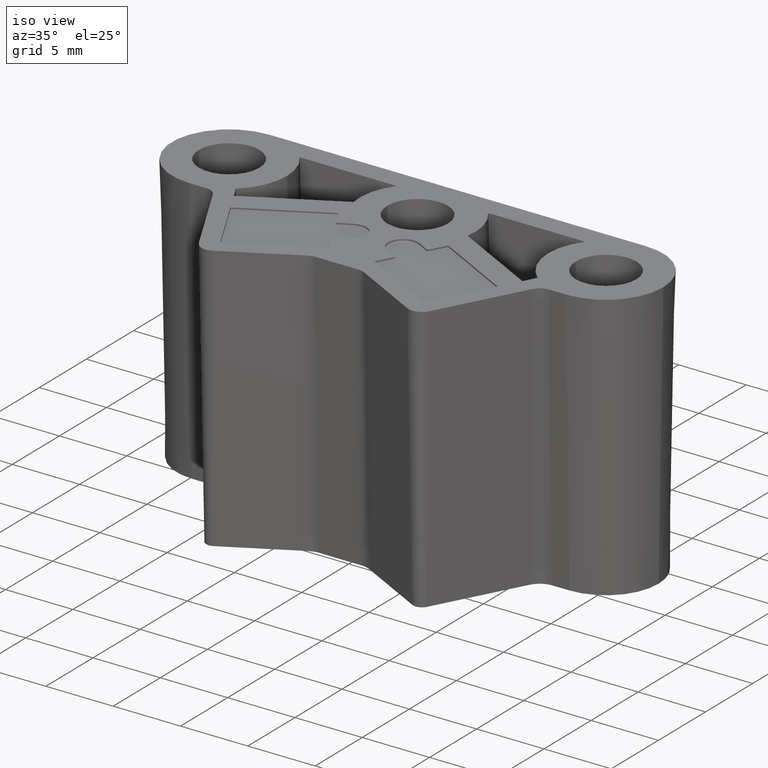
[diagram: clean part render]
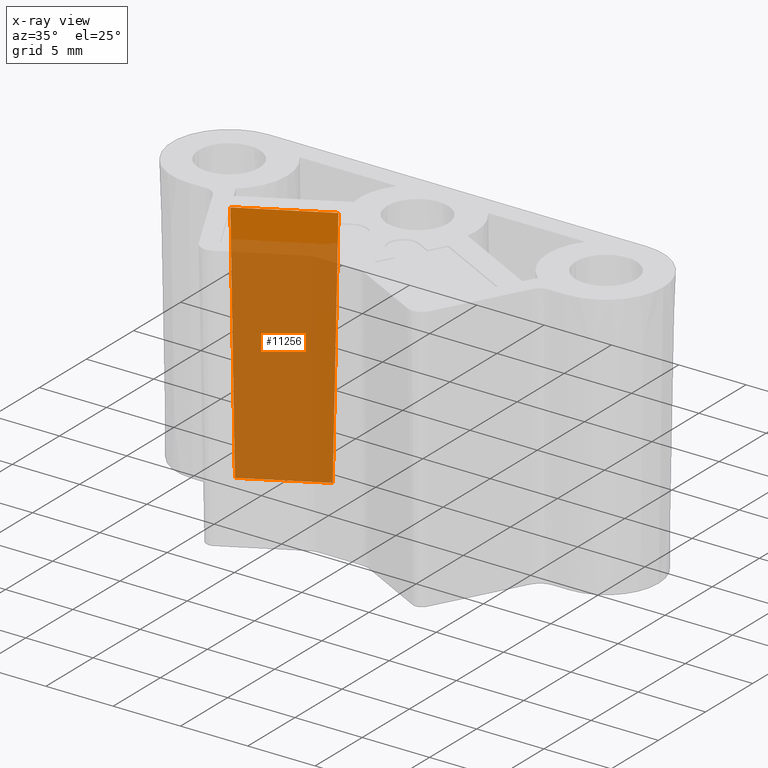
[diagram: x-ray — body ghosted, one internal face saturated and labeled with its STEP entity id]
A machine part, iso view, then the same camera in x-ray: the body is ghosted and one INTERNAL B-rep face — a face not visible from any outside direction — is saturated and labeled: STEP entity #11256.
In plain terms, the highlighted planar face has unit normal (0.4694, -0.8828, 0.0175).
Its self-contained STEP definition (entity closure, byte-faithful):
#2256 = CARTESIAN_POINT ( 'NONE',  ( -9.928057693954402300, 26.61253433603158300, 20.00000000000001800 ) ) ;
#2257 = CARTESIAN_POINT ( 'NONE',  ( -4.075527869448286800, 29.72437964280158300, 20.00000000000001800 ) ) ;
#2276 = DIRECTION ( 'NONE',  ( -0.8829475928589265400, -0.4694715627858913600, -5.916456789157587700E-031 ) ) ;
#2277 = VECTOR ( 'NONE', #2276, 1000.000000000000100 ) ;
#2278 = CARTESIAN_POINT ( 'NONE',  ( -9.928057693954400500, 26.61253433603158300, 20.00000000000001800 ) ) ;
#2279 = LINE ( 'NONE', #2278, #2277 ) ;
#4900 = AXIS2_PLACEMENT_3D ( 'NONE', #4982, #4981, #4980 ) ;
#4901 = PLANE ( 'NONE',  #4900 ) ;
#4915 = FACE_OUTER_BOUND ( 'NONE', #11257, .T. ) ;
#4966 = DIRECTION ( 'NONE',  ( 0.007215053008729380900, 0.02359937502610440200, 0.9996954598818874600 ) ) ;
#4967 = VECTOR ( 'NONE', #4966, 1000.000000000000100 ) ;
#4968 = CARTESIAN_POINT ( 'NONE',  ( -4.075705918451829400, 29.72379727075214000, 19.97533008000601400 ) ) ;
#4969 = LINE ( 'NONE', #4968, #4967 ) ;
#4971 = CARTESIAN_POINT ( 'NONE',  ( -4.205438386569642100, 29.29946148770656900, 2.000000000000001800 ) ) ;
#4972 = DIRECTION ( 'NONE',  ( -0.8829475928589265400, -0.4694715627858913600, -7.888609052210116300E-031 ) ) ;
#4973 = VECTOR ( 'NONE', #4972, 1000.000000000000200 ) ;
#4974 = CARTESIAN_POINT ( 'NONE',  ( -2.956781698316635100, 29.96338402575787900, 2.000000000000001800 ) ) ;
#4975 = LINE ( 'NONE', #4974, #4973 ) ;
#4976 = CARTESIAN_POINT ( 'NONE',  ( -9.503139538859379300, 26.48262381891022700, 2.000000000000001800 ) ) ;
#4977 = DIRECTION ( 'NONE',  ( -0.02359937502610439500, 0.007215053008729369600, 0.9996954598818874600 ) ) ;
#4978 = VECTOR ( 'NONE', #4977, 1000.000000000000200 ) ;
#4979 = CARTESIAN_POINT ( 'NONE',  ( -9.928057693954400500, 26.61253433603158300, 20.00000000000001800 ) ) ;
#4980 = DIRECTION ( 'NONE',  ( 0.8829475928589265400, 0.4694715627858913600, 7.888609052210116300E-031 ) ) ;
#4981 = DIRECTION ( 'NONE',  ( 0.4694000599929425400, -0.8828131156638815400, 0.01745240643728354600 ) ) ;
#4982 = CARTESIAN_POINT ( 'NONE',  ( -9.928057693954400500, 26.61253433603158300, 20.00000000000001800 ) ) ;
#4983 = LINE ( 'NONE', #4979, #4978 ) ;
#11256 = ADVANCED_FACE ( 'NONE', ( #4915 ), #4901, .T. ) ;
#11257 = EDGE_LOOP ( 'NONE', ( #11258, #11259, #11262, #11265 ) ) ;
#11258 = ORIENTED_EDGE ( 'NONE', *, *, #13543, .T. ) ;
#11259 = ORIENTED_EDGE ( 'NONE', *, *, #11260, .F. ) ;
#11260 = EDGE_CURVE ( 'NONE', #11261, #13516, #4983, .T. ) ;
#11261 = VERTEX_POINT ( 'NONE', #4976 ) ;
#11262 = ORIENTED_EDGE ( 'NONE', *, *, #11263, .F. ) ;
#11263 = EDGE_CURVE ( 'NONE', #11264, #11261, #4975, .T. ) ;
#11264 = VERTEX_POINT ( 'NONE', #4971 ) ;
#11265 = ORIENTED_EDGE ( 'NONE', *, *, #11266, .T. ) ;
#11266 = EDGE_CURVE ( 'NONE', #11264, #13515, #4969, .T. ) ;
#13515 = VERTEX_POINT ( 'NONE', #2257 ) ;
#13516 = VERTEX_POINT ( 'NONE', #2256 ) ;
#13543 = EDGE_CURVE ( 'NONE', #13515, #13516, #2279, .T. ) ;